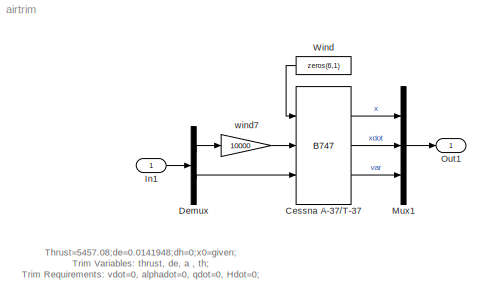
MODEL airtrim
KIND model
CONFIG AbsTol = auto
CONFIG FixedStep = auto
CONFIG MaxStep = auto
CONFIG RelTol = 1e-3
CONFIG Solver = ode45
CONFIG SolverMode = Auto
CONFIG StartTime = 0.0
CONFIG StopTime = 10.0
BLOCK [Reference]  Cessna A-37//T-37   REF=airlib/B747  (lib defined in mdl_00852699f85c, mdl_b3a2112ccc5d, +1 more)
  CD_wind = [0.048  0.384  0  0  0]
  CL_wind = [0.2   5.15    4.1   0.5   0]
  CY_body = [0  -0.346  -0.0827  0.3  0.0  0.2]
  Cl_body = [0   -0.0944  -0.442  0.0926  -0.181  0.015]
  Cm_body = [0.025   -0.7   -14.9   -1.12  0]
  Cn_body = [0    0.1106   -0.0243   -0.139  0.0254  -0.0365]
  GM1 = [1.6673 10.3022  16.9084  10826  4509.5  15162  0 0 0   2884.9]
  Ports = [3, 3, 0, 0, 0]
  SourceBlock = airlib/B747
  SourceType = General Nonlinear Aircraft Model
  x0 = [100  0.0130027 0   0 0 0   0 0.0130027 0   0 0 60]
BLOCK [Demux] Demux
  Outputs = [6 4]
  Ports = [1, 2, 0, 0, 0]
BLOCK [Inport] In1
  DataType = auto
  Interpolate = on
  Port = 1
  PortWidth = -1
  SampleTime = -1
  SignalType = auto
BLOCK [Mux] Mux1
  DisplayOption = none
  Inputs = [12 12 12]
  Ports = [3, 1, 0, 0, 0]
BLOCK [Outport] Out1
  InitialOutput = []
  OutputWhenDisabled = held
  Port = 1
BLOCK [Constant] Wind
  Value = zeros(6,1)
BLOCK [Gain] wind7
  Gain = 10000
  SaturateOnIntegerOverflow = on
LINE  Cessna A-37//T-37 :1 -> Mux1:1
LINE  Cessna A-37//T-37 :2 -> Mux1:2
LINE  Cessna A-37//T-37 :3 -> Mux1:3
LINE Demux:1 -> wind7:1
LINE Demux:2 ->  Cessna A-37//T-37 :3
LINE In1:1 -> Demux:1
LINE Mux1:1 -> Out1:1
LINE Wind:1 ->  Cessna A-37//T-37 :1
LINE wind7:1 ->  Cessna A-37//T-37 :2
